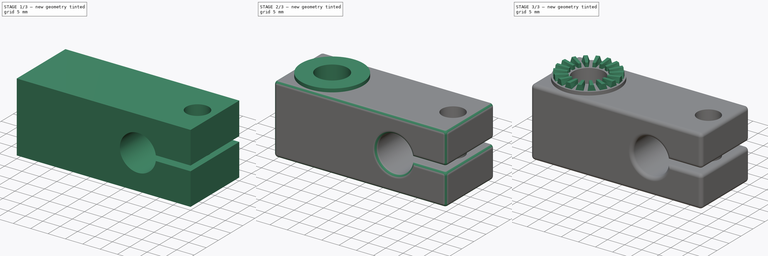
[diagram: build sequence overview — one tinted view per stage of 3, left to right]
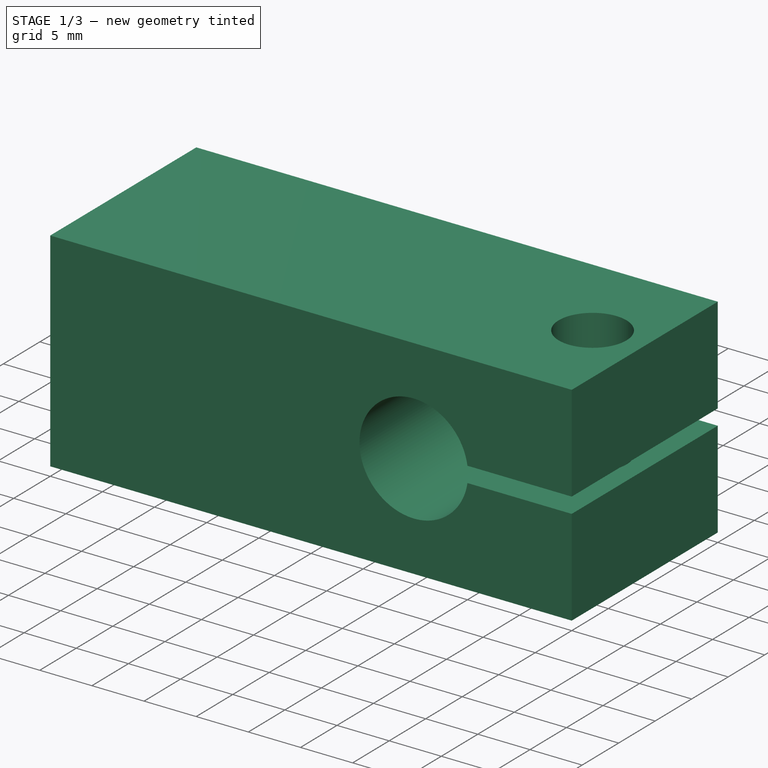
[diagram: stage 1 of 3 — iso view after this stage's code; geometry added in this stage tinted green]
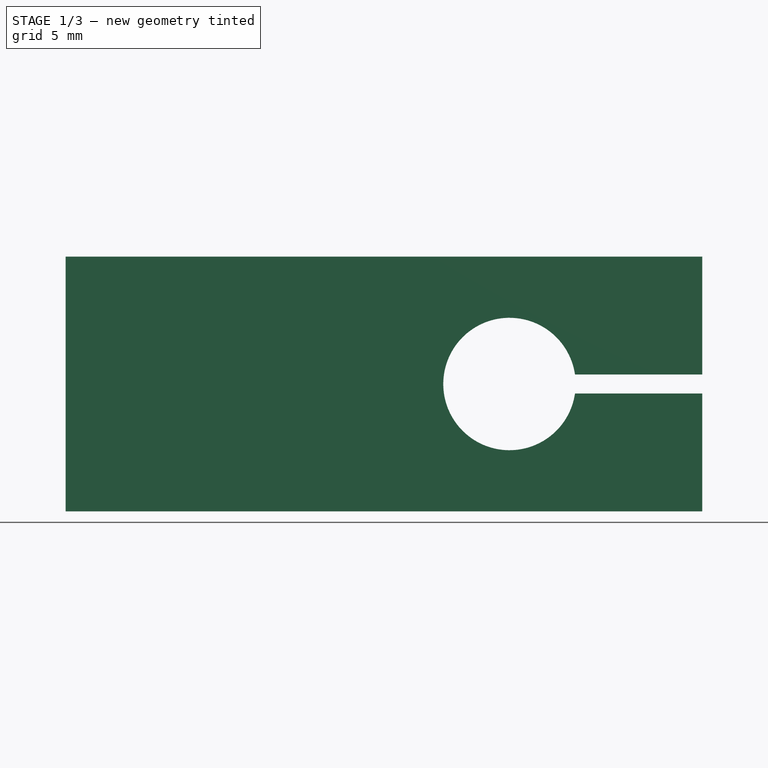
[diagram: stage 1 of 3 — front view after this stage's code; geometry added in this stage tinted green]
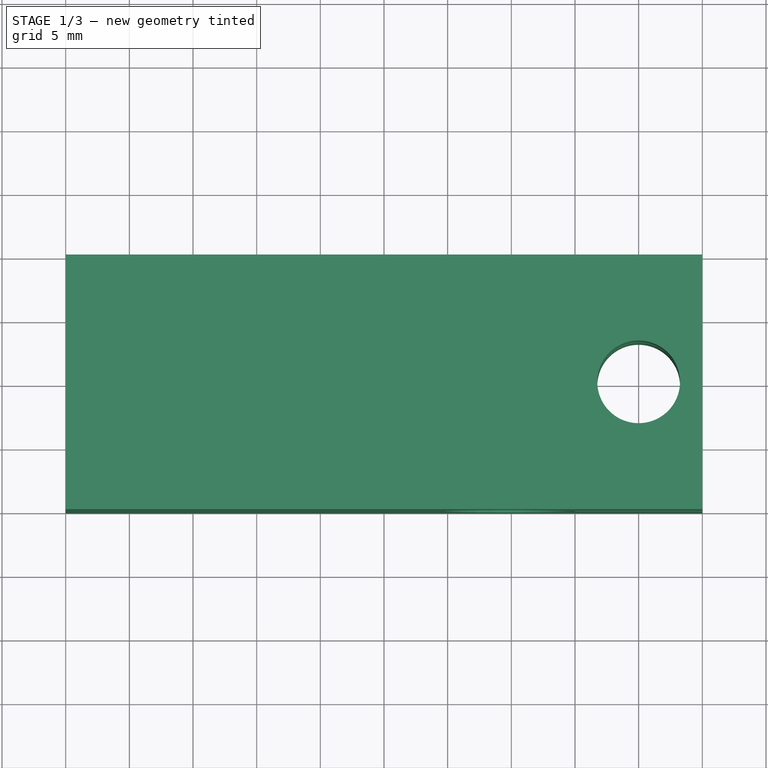
[diagram: stage 1 of 3 — top view after this stage's code; geometry added in this stage tinted green]
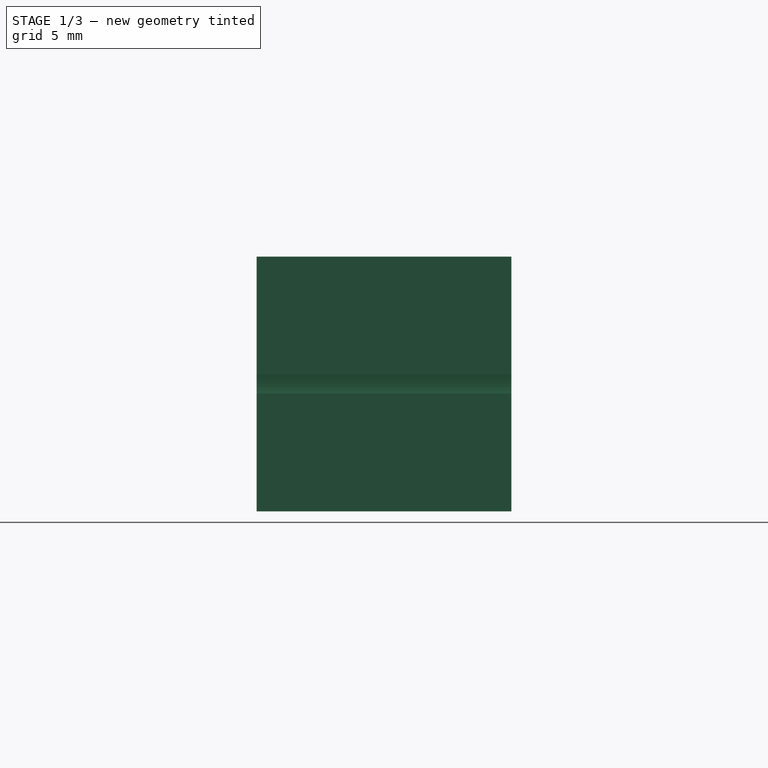
[diagram: stage 1 of 3 — right view after this stage's code; geometry added in this stage tinted green]
FCSTD DOCUMENT  (FreeCAD 0.17R13541 (Git))
Label: holder
License: All rights reserved
LicenseURL: http://en.wikipedia.org/wiki/All_rights_reserved
objects: Sketcher::SketchObject×6, PartDesign::Pad×2, PartDesign::Pocket×2, Part::Loft×1, Part::FeaturePython×1, PartDesign::Fillet×1, PartDesign::Body×1
note: 18 computed .brp shape members not serialized (recipe doc carries the construction recipe); baked Part::Feature solids carry a one-line shape summary decoded from their .brp

FEATURE [Sketcher::SketchObject] Sketch
  AttachmentOffset = pos=(0,0,-10) rot=(0,0,1;0rad)
  MapMode = 5
  Placement = pos=(0,10,1e-12) rot=(1,0,0;1.5708rad)
  Support = -> [XZ_Plane]
  sketch-geometry (8):
    g0: LineSegment StartX=-25 StartY=10 StartZ=0 EndX=25 EndY=10 EndZ=0
    g1: LineSegment StartX=25 StartY=-10 StartZ=0 EndX=-25 EndY=-10 EndZ=0
    g2: LineSegment StartX=-25 StartY=-10 StartZ=0 EndX=-25 EndY=10 EndZ=0
    g3: LineSegment StartX=25 StartY=0.75 StartZ=0 EndX=15 EndY=0.75 EndZ=0
    g4: LineSegment StartX=25 StartY=-0.75 StartZ=0 EndX=15 EndY=-0.75 EndZ=0
    g5: LineSegment StartX=25 StartY=-10 StartZ=0 EndX=25 EndY=-0.75 EndZ=0
    g6: LineSegment StartX=25 StartY=0.75 StartZ=0 EndX=25 EndY=10 EndZ=0
    g7: ArcOfCircle CenterX=9.85437 CenterY=0 CenterZ=0 NormalX=0 NormalY=0 NormalZ=1 AngleXU=0 Radius=5.2 StartAngle=0.144736 EndAngle=6.13845
  constraints (24):
    c: Coincident(g1,g2)
    c: Coincident(g2,g0)
    c: Horizontal(g0)
    c: Horizontal(g1)
    c: Vertical(g2)
    c: Symmetric(g0,g1,g-1)
    c: Symmetric(g0,g0,g-2)
    c: DistanceX(g0,g0) = 50
    c: DistanceY(g1,g0) = 20
    c: Horizontal(g3)
    c: Horizontal(g4)
    c: Coincident(g5,g1)
    c: Coincident(g5,g4)
    c: Vertical(g5)
    c: Coincident(g6,g3)
    c: Coincident(g6,g0)
    c: Vertical(g6)
    c: PointOnObject(g7,g-1)
    c: Coincident(g7,g4)
    c: Coincident(g7,g3)
    c: Radius(g7) = 5.2
    c: Symmetric(g3,g4,g-1)
    c: DistanceX(g4,g4) = 10
    c: DistanceY(g4,g3) = 1.5
FEATURE [PartDesign::Pad] Pad
  Length = 20
  Length2 = 100
  Placement = pos=(0,0,0) rot=(1,0,0;1.5708rad)
  Profile = -> Sketch
  Type = 0
FEATURE [Sketcher::SketchObject] Sketch001
  ExternalGeometry = -> [Pad]
  MapMode = 5
  Placement = pos=(0,-1e-12,10) rot=(0,0,1;3.14159rad)
  Support = -> [Pad]
  sketch-geometry (1):
    g0: Circle CenterX=-20 CenterY=0 CenterZ=0 NormalX=0 NormalY=0 NormalZ=1 AngleXU=0 Radius=3.25
  constraints (3):
    c: PointOnObject(g0,g-1)
    c: Radius(g0) = 3.25
    c: DistanceX(g-4,g0) = 5
FEATURE [PartDesign::Pocket] Pocket
  BaseFeature = -> Pad
  Length = 5
  Length2 = 100
  Placement = pos=(0,0,0) rot=(1,0,0;1.5708rad)
  Profile = -> Sketch001
  Type = 1
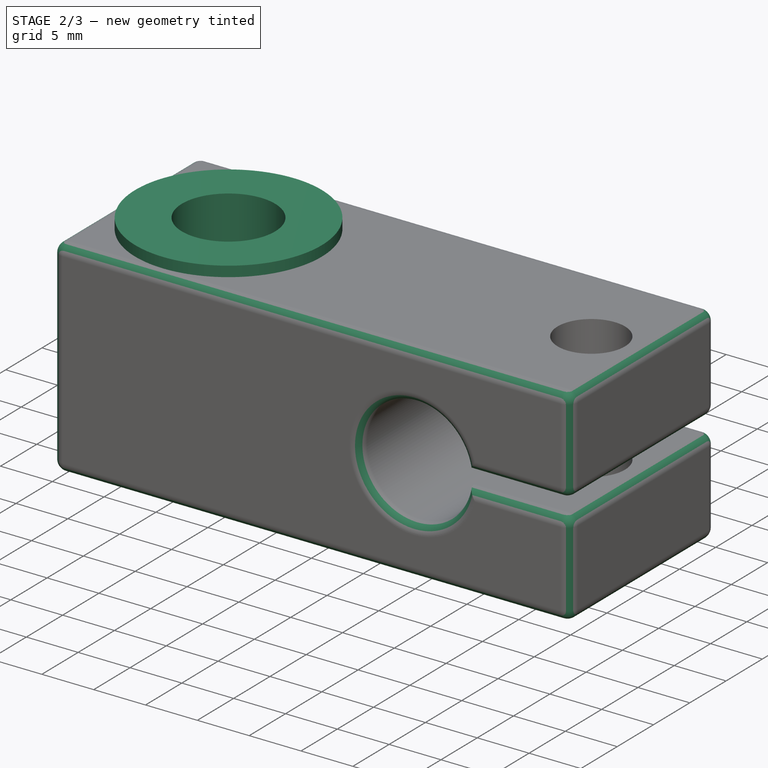
[diagram: stage 2 of 3 — iso view after this stage's code; geometry added in this stage tinted green]
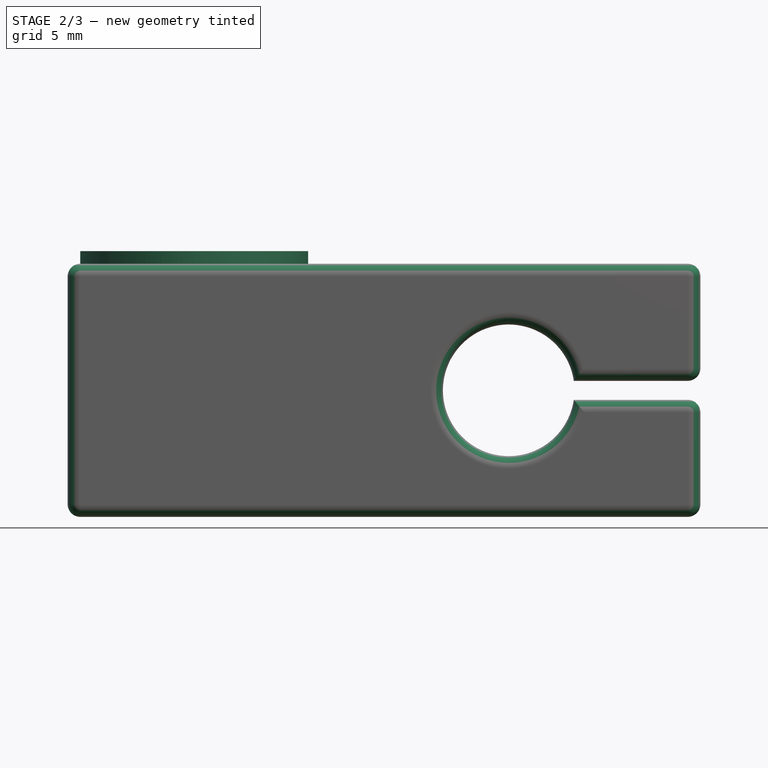
[diagram: stage 2 of 3 — front view after this stage's code; geometry added in this stage tinted green]
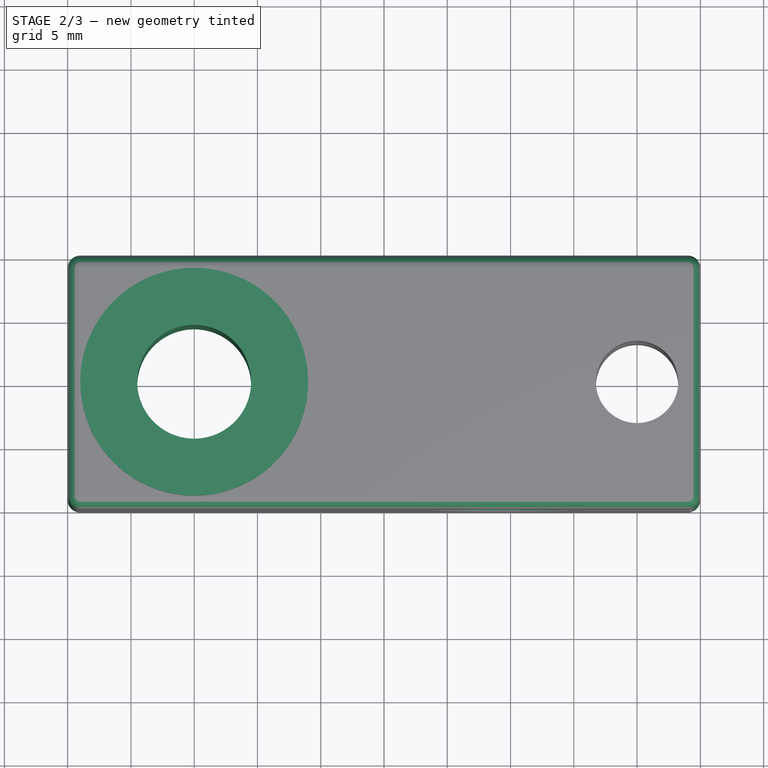
[diagram: stage 2 of 3 — top view after this stage's code; geometry added in this stage tinted green]
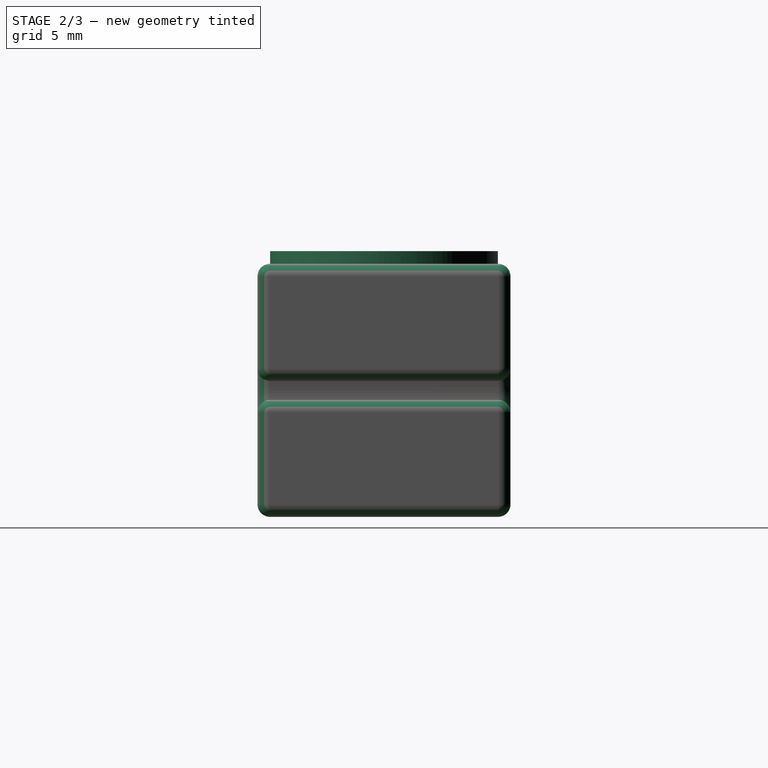
[diagram: stage 2 of 3 — right view after this stage's code; geometry added in this stage tinted green]
FEATURE [Sketcher::SketchObject] Sketch002
  MapMode = 5
  Placement = pos=(0,1e-12,-10) rot=(1,0,0;3.14159rad)
  Support = -> [Pocket]
  sketch-geometry (1):
    g0: Circle CenterX=-15 CenterY=0 CenterZ=0 NormalX=0 NormalY=0 NormalZ=1 AngleXU=0 Radius=9
  constraints (3):
    c: PointOnObject(g0,g-1)
    c: Radius(g0) = 9
    c: DistanceX(g0,g-1) = 15
FEATURE [PartDesign::Pad] Pad001
  BaseFeature = -> Pocket
  Length = 21
  Length2 = 21
  Placement = pos=(0,0,0) rot=(1,0,0;1.5708rad)
  Profile = -> Sketch002
  Reversed = true
  Type = 0
FEATURE [Sketcher::SketchObject] Sketch003
  ExternalGeometry = -> [Pad001]
  MapMode = 5
  Placement = pos=(0,1e-12,-10) rot=(1,0,0;3.14159rad)
  Support = -> [Pad001]
  sketch-geometry (1):
    g0: Circle CenterX=-15 CenterY=0 CenterZ=0 NormalX=0 NormalY=0 NormalZ=1 AngleXU=0 Radius=4.5
  constraints (2):
    c: Coincident(g0,g-3)
    c: Radius(g0) = 4.5
FEATURE [PartDesign::Pocket] Pocket001
  BaseFeature = -> Pad001
  Length = 5
  Length2 = 100
  Placement = pos=(0,0,0) rot=(1,0,0;1.5708rad)
  Profile = -> Sketch003
  Type = 1
FEATURE [PartDesign::Fillet] Fillet
  Base = -> Pocket001 [Face5,Face3,Face4,Face10,Face2]
  BaseFeature = -> Pocket001
  Placement = pos=(0,0,0) rot=(1,0,0;1.5708rad)
  Radius = 1
FEATURE [PartDesign::Body] Body
  Group = -> [Sketch,Pad,Sketch001,Pocket,Sketch002,Pad001,Sketch003,Pocket001,Sketch004,Sketch005,Fillet]
  Origin = -> Origin
  Tip = -> Fillet
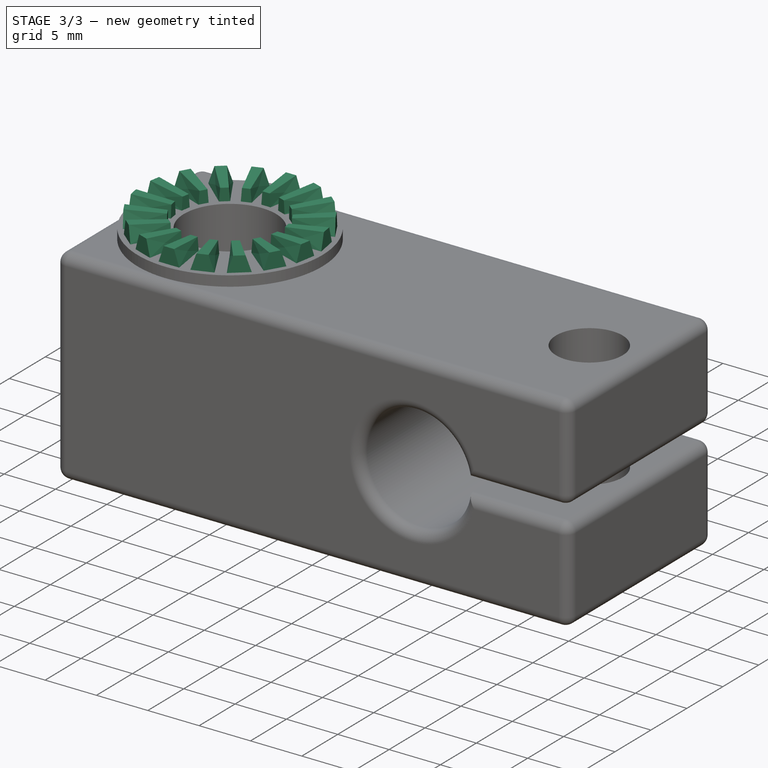
[diagram: stage 3 of 3 — iso view after this stage's code; geometry added in this stage tinted green]
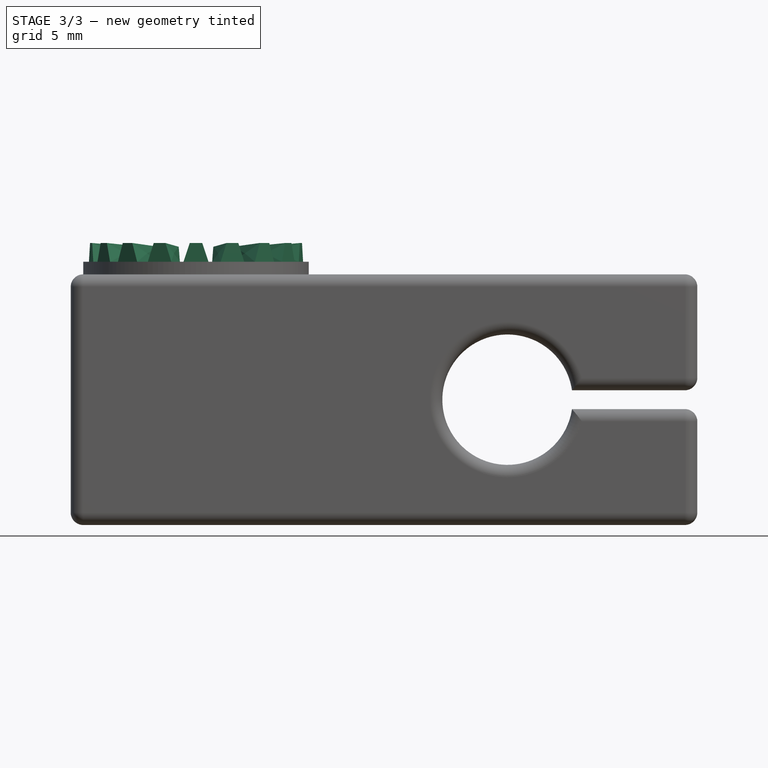
[diagram: stage 3 of 3 — front view after this stage's code; geometry added in this stage tinted green]
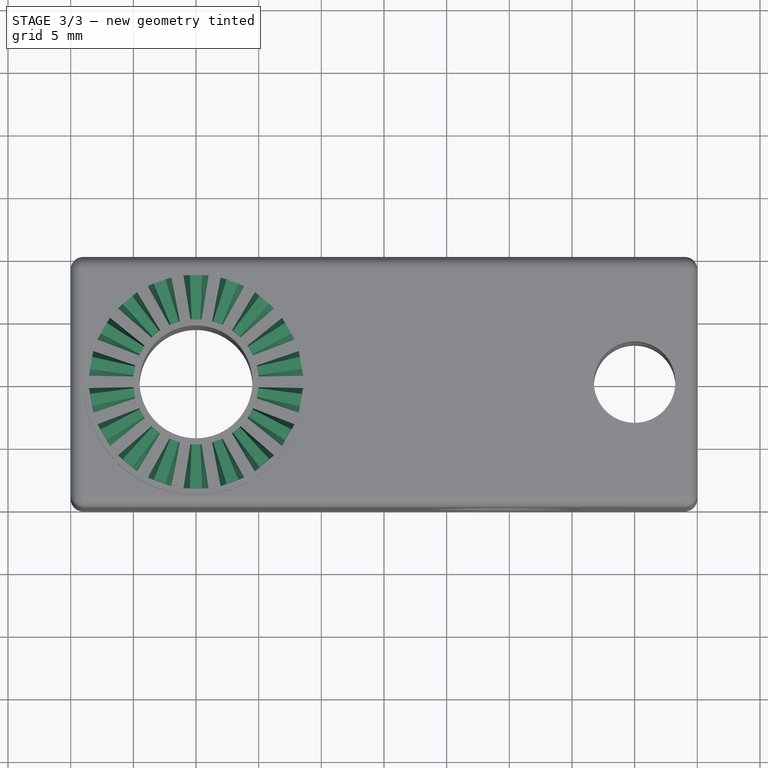
[diagram: stage 3 of 3 — top view after this stage's code; geometry added in this stage tinted green]
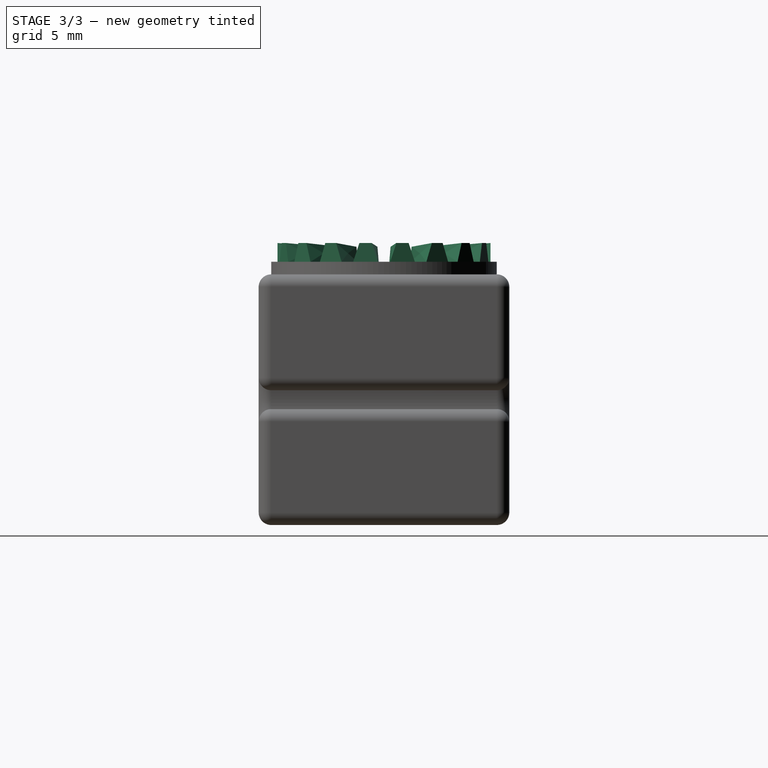
[diagram: stage 3 of 3 — right view after this stage's code; geometry added in this stage tinted green]
FEATURE [Sketcher::SketchObject] Sketch004
  AttachmentOffset = pos=(0,0,8.5) rot=(0,0,1;0rad)
  MapMode = 5
  Placement = pos=(0,-8.5,-1e-12) rot=(1,0,0;1.5708rad)
  Support = -> [XZ_Plane]
  sketch-geometry (5):
    g0: LineSegment [constr] StartX=-15 StartY=15 StartZ=0 EndX=-15 EndY=-15 EndZ=0
    g1: LineSegment StartX=-16 StartY=11 StartZ=0 EndX=-14 EndY=11 EndZ=0
    g2: LineSegment StartX=-14 StartY=11 StartZ=0 EndX=-14.5 EndY=12.5 EndZ=0
    g3: LineSegment StartX=-14.5 StartY=12.5 StartZ=0 EndX=-15.5 EndY=12.5 EndZ=0
    g4: LineSegment StartX=-15.5 StartY=12.5 StartZ=0 EndX=-16 EndY=11 EndZ=0
  constraints (17):
    c: Vertical(g0)
    c: DistanceX(g0,g-1) = 15
    c: DistanceY(g-1,g0) = 15
    c: Symmetric(g0,g0,g-1)
    c: Horizontal(g1)
    c: Coincident(g1,g2)
    c: Coincident(g2,g3)
    c: Horizontal(g3)
    c: Coincident(g3,g4)
    c: PointOnObject(g4,g1)
    c: Coincident(g4,g1)
    c: Symmetric(g1,g1,g0)
    c: DistanceX(g1,g1) = 2
    c: DistanceX(g3,g2) = 1
    c: Symmetric(g3,g2,g0)
    c: DistanceY(g1,g2) = 1.5
    c: DistanceY(g-1,g1) = 11
FEATURE [Sketcher::SketchObject] Sketch005
  AttachmentOffset = pos=(0,0,5) rot=(0,0,1;0rad)
  MapMode = 5
  Placement = pos=(0,-5,-1e-12) rot=(1,0,0;1.5708rad)
  Support = -> [XZ_Plane]
  sketch-geometry (5):
    g0: LineSegment StartX=-15.45 StartY=11 StartZ=0 EndX=-14.55 EndY=11 EndZ=0
    g1: LineSegment StartX=-14.55 StartY=11 StartZ=0 EndX=-14.65 EndY=12.2 EndZ=0
    g2: LineSegment StartX=-15.35 StartY=12.2 StartZ=0 EndX=-15.45 EndY=11 EndZ=0
    g3: LineSegment [constr] StartX=-15 StartY=15 StartZ=0 EndX=-15 EndY=-15 EndZ=0
    g4: LineSegment StartX=-15.35 StartY=12.2 StartZ=0 EndX=-14.65 EndY=12.2 EndZ=0
  constraints (15):
    c: Horizontal(g0)
    c: Coincident(g2,g0)
    c: DistanceY(g-1,g3) = 15
    c: DistanceX(g3,g-1) = 15
    c: Symmetric(g0,g0,g3)
    c: DistanceX(g0,g0) = 0.9
    c: DistanceY(g0,g1) = 1.2
    c: Symmetric(g3,g3,g-1)
    c: DistanceY(g-1,g0) = 11
    c: Coincident(g1,g0)
    c: Coincident(g4,g2)
    c: Horizontal(g4)
    c: DistanceX(g2,g1) = 0.7
    c: Symmetric(g2,g1,g3)
    c: Coincident(g4,g1)
FEATURE [Part::Loft] Loft
  Closed = false
  MaxDegree = 5
  Ruled = false
  Sections = -> [Sketch004,Sketch005]
  Solid = true
FEATURE [Part::FeaturePython] Array  # Draft array (typed FeaturePython)
  Angle = 360
  ArrayType = 1
  Axis = (0,0,1)
  Base = -> Loft
  Center = (-15,0,0)
  Fuse = false
  IntervalAxis = (0,0,0)
  IntervalX = (1,0,0)
  IntervalY = (0,1,0)
  IntervalZ = (0,0,0)
  NumberPolar = 18
  NumberX = 1
  NumberY = 1
  NumberZ = 1
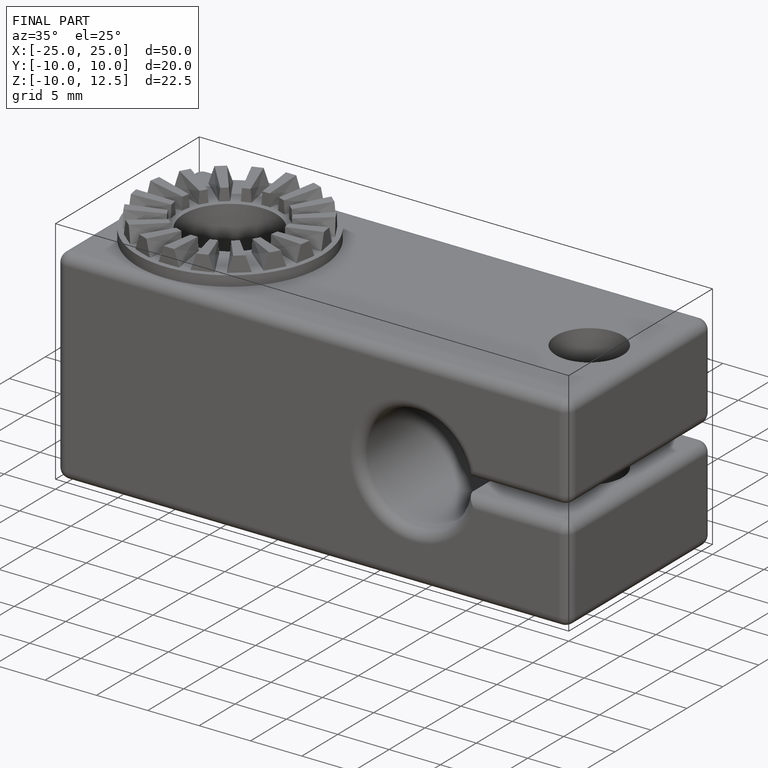
[diagram: finished part — iso view with bounding-box wireframe]
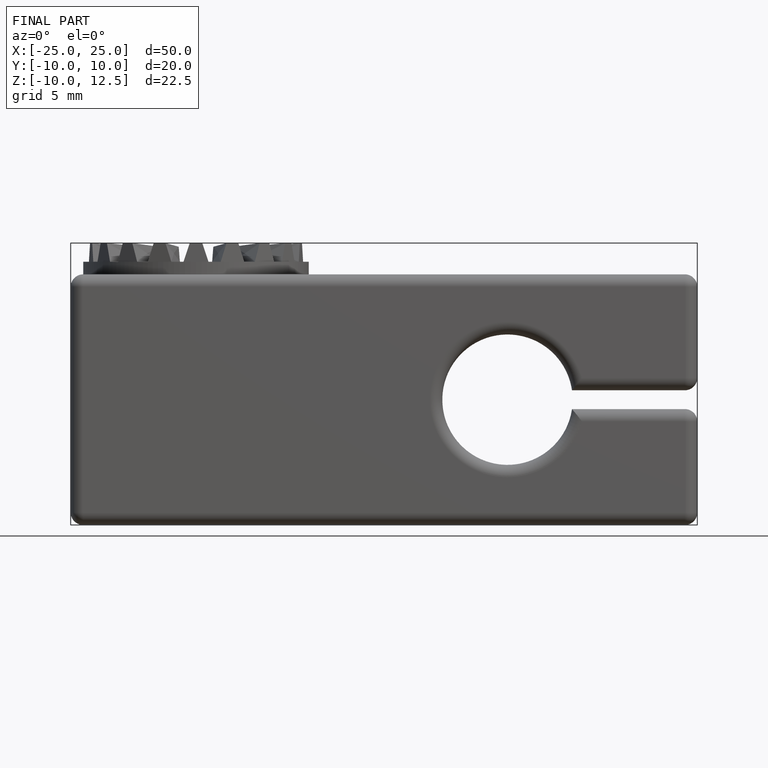
[diagram: finished part — front view with bounding-box wireframe]
